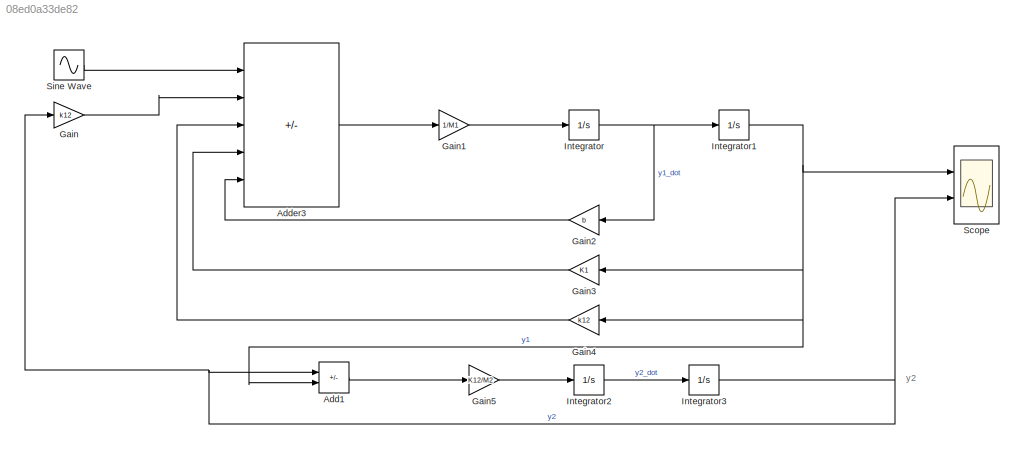
MODEL slx_08ed0a33de82
KIND model
CONFIG AbsTol = auto
CONFIG EnableMultiTasking = off
CONFIG FixedStep = auto
CONFIG MaxStep = auto
CONFIG MinStep = auto
CONFIG RelTol = 1e-3
CONFIG SampleTimeConstraint = Unconstrained
CONFIG SolverName = VariableStepAuto
CONFIG StartTime = 0.0
CONFIG StopTime = 50.0
WORKSPACE source: mxarray member
WORKSPACE K1: Simulink.Parameter (value not decoded)
WORKSPACE K12: Simulink.Parameter (value not decoded)
WORKSPACE K12_M2 = 8
WORKSPACE b: Simulink.Parameter (value not decoded)
WORKSPACE k12: Simulink.Parameter (value not decoded)
WORKSPACE x1_M1 = 8
BLOCK [Sum] Add1
  IconShape = rectangular
  Inputs = -+
  Ports = [2, 1]
BLOCK [Sum] Adder3
  IconShape = rectangular
  Inputs = ++---
  Ports = [5, 1]
BLOCK [Gain] Gain
  Gain = k12
BLOCK [Gain] Gain1
  Gain = 1/M1
BLOCK [Gain] Gain2
  Gain = b
  NameLocation = top
BLOCK [Gain] Gain3
  Gain = K1
  NameLocation = top
BLOCK [Gain] Gain4
  Gain = k12
  NameLocation = top
BLOCK [Gain] Gain5
  Gain = K12/M2
BLOCK [Integrator] Integrator
  Ports = [1, 1]
BLOCK [Integrator] Integrator1
  Ports = [1, 1]
BLOCK [Integrator] Integrator2
  Ports = [1, 1]
BLOCK [Integrator] Integrator3
  Ports = [1, 1]
BLOCK [Scope] Scope
  Floating = off
  NumInputPorts = 2
  Ports = [2]
  ScopeSpecificationString = Simulink.scopes.TimeScopeBlockCfg('CurrentConfiguration', extmgr.ConfigurationSet(extmgr.Configuration('Core','General UI',true),extmgr.Configuration('Core','Source UI',true),extmgr.Configuration('Sources','WiredSimulink',true),extmgr.Configuration('Visuals','Time Domain',true,'SerializedDisplays',{struct('MinYLimReal','-0.0181','MaxYLimReal','0.16293','YLabelReal','','MinYLimMag','0.00000','MaxYL...<+2012ch>
BLOCK [Sin] Sine Wave
  Amplitude = 3
  Frequency = 10
  Ports = [0, 1]
  SampleTime = 0
ANNOTATION (root): y2
LINE Add1:1 -> Gain5:1
LINE Adder3:1 -> Gain1:1
LINE Gain1:1 -> Integrator:1
LINE Gain2:1 -> Adder3:5
LINE Gain3:1 -> Adder3:4
LINE Gain4:1 -> Adder3:3
LINE Gain5:1 -> Integrator2:1
LINE Gain:1 -> Adder3:2
NET Integrator1:1 -> Add1:2, Gain3:1, Gain4:1, Scope:1
LINE Integrator2:1 -> Integrator3:1
NET Integrator3:1 -> Add1:1, Gain:1, Scope:2
NET Integrator:1 -> Gain2:1, Integrator1:1
LINE Sine Wave:1 -> Adder3:1
note: NET lines group one-source signal fan-out (src -> all destinations, sorted); 1:1 wires keep LINE
